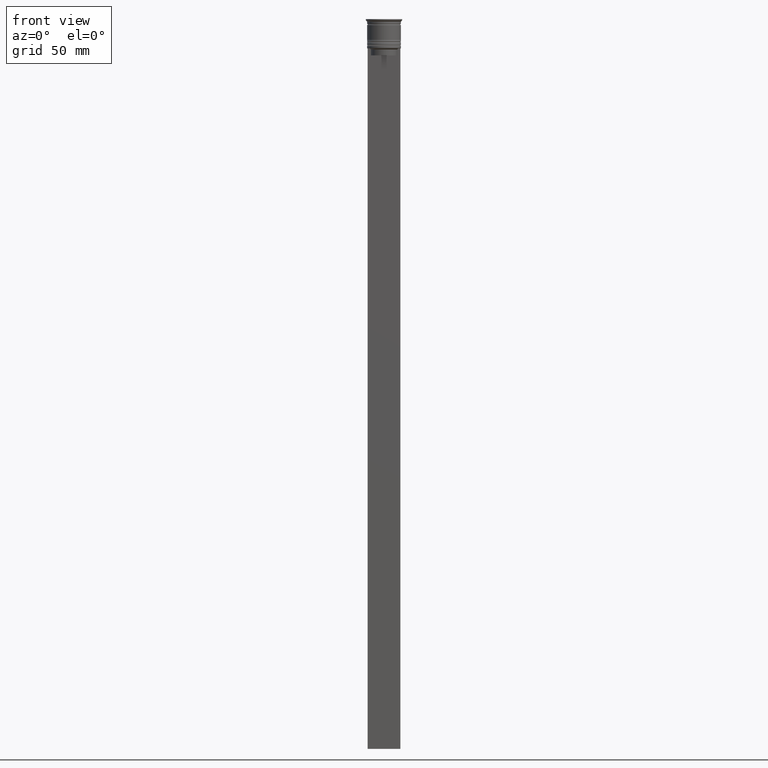
[diagram: clean part render]
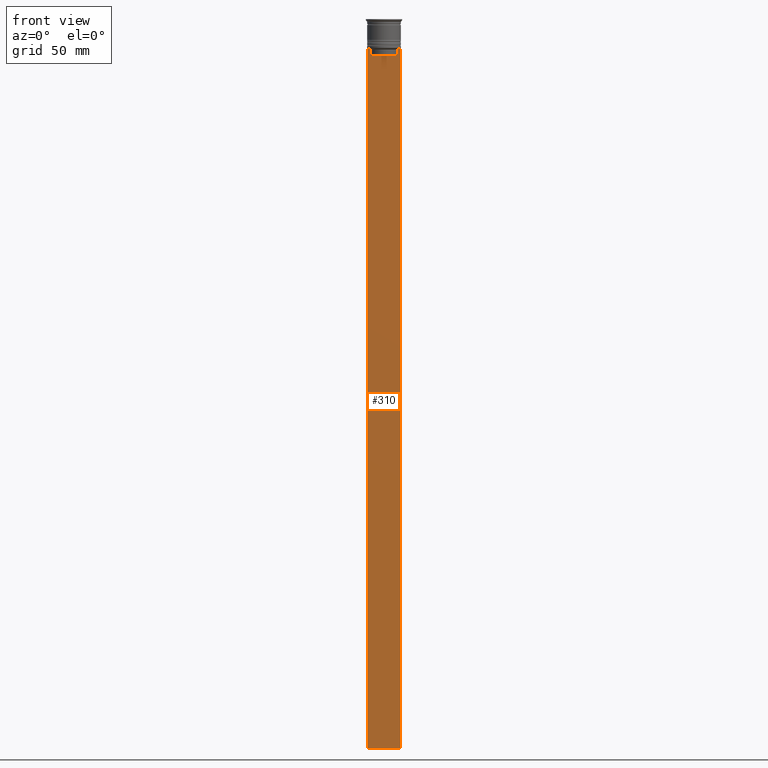
[diagram: same view with one face highlighted and labeled with its STEP entity id]
A machine part, front view. The second image highlights one B-rep face of the part: STEP entity #310.
In plain terms, the highlighted planar face has unit normal (0, -1, -0).
Its self-contained STEP definition (entity closure, byte-faithful):
#9 = VERTEX_POINT ( 'NONE', #495 ) ;
#22 = VERTEX_POINT ( 'NONE', #2275 ) ;
#41 = CARTESIAN_POINT ( 'NONE',  ( 5.627832620112292794, -0.5000000000000022204, -13.00000000000000000 ) ) ;
#66 = VECTOR ( 'NONE', #2034, 1000.000000000000000 ) ;
#116 = VERTEX_POINT ( 'NONE', #884 ) ;
#178 = VERTEX_POINT ( 'NONE', #297 ) ;
#208 = FACE_OUTER_BOUND ( 'NONE', #2069, .T. ) ;
#219 = CARTESIAN_POINT ( 'NONE',  ( 5.795128760752288777, -0.5000000000000022204, -12.83336023406855375 ) ) ;
#262 = CARTESIAN_POINT ( 'NONE',  ( 7.000000000000012434, -0.5000000000000022204, -12.50000000000000000 ) ) ;
#297 = CARTESIAN_POINT ( 'NONE',  ( 5.627832620112292794, -0.5000000000000022204, -15.50000000000000000 ) ) ;
#310 = ADVANCED_FACE ( 'NONE', ( #208 ), #381, .T. ) ;
#324 = CARTESIAN_POINT ( 'NONE',  ( -5.795128834036803234, -0.5000000000000022204, -12.83336016107156574 ) ) ;
#325 = EDGE_CURVE ( 'NONE', #178, #22, #926, .T. ) ;
#346 = VERTEX_POINT ( 'NONE', #1145 ) ;
#351 = CARTESIAN_POINT ( 'NONE',  ( 7.000000000000012434, -0.5000000000000022204, -312.5000000000000000 ) ) ;
#381 = PLANE ( 'NONE',  #925 ) ;
#394 = ORIENTED_EDGE ( 'NONE', *, *, #1666, .F. ) ;
#400 = DIRECTION ( 'NONE',  ( 1.000000000000000000, 0.000000000000000000, 0.000000000000000000 ) ) ;
#443 = EDGE_CURVE ( 'NONE', #9, #2117, #2021, .T. ) ;
#495 = CARTESIAN_POINT ( 'NONE',  ( -6.999999999999987566, -0.5000000000000022204, -12.50000000000000000 ) ) ;
#527 = CARTESIAN_POINT ( 'NONE',  ( -6.999999999999987566, -0.5000000000000022204, -312.5000000000000000 ) ) ;
#598 = CARTESIAN_POINT ( 'NONE',  ( 5.962396079681182570, -0.5000000000000022204, -12.66669137279835766 ) ) ;
#606 = LINE ( 'NONE', #1672, #740 ) ;
#714 = CARTESIAN_POINT ( 'NONE',  ( 7.000000000000012434, -0.5000000000000022204, -312.5000000000000000 ) ) ;
#723 = DIRECTION ( 'NONE',  ( 0.000000000000000000, 0.000000000000000000, -1.000000000000000000 ) ) ;
#724 = VERTEX_POINT ( 'NONE', #351 ) ;
#730 = DIRECTION ( 'NONE',  ( 0.000000000000000000, -1.000000000000000000, -0.000000000000000000 ) ) ;
#740 = VECTOR ( 'NONE', #1096, 1000.000000000000000 ) ;
#787 = LINE ( 'NONE', #1504, #2207 ) ;
#847 = DIRECTION ( 'NONE',  ( -1.000000000000000000, 0.000000000000000000, 0.000000000000000000 ) ) ;
#880 = ORIENTED_EDGE ( 'NONE', *, *, #325, .F. ) ;
#884 = CARTESIAN_POINT ( 'NONE',  ( -5.627832620112292794, -0.5000000000000022204, -15.50000000000000000 ) ) ;
#892 = ORIENTED_EDGE ( 'NONE', *, *, #443, .F. ) ;
#894 = LINE ( 'NONE', #2331, #1909 ) ;
#903 = LINE ( 'NONE', #2013, #1746 ) ;
#925 = AXIS2_PLACEMENT_3D ( 'NONE', #1090, #730, #1449 ) ;
#926 = LINE ( 'NONE', #1656, #66 ) ;
#972 = ORIENTED_EDGE ( 'NONE', *, *, #1098, .F. ) ;
#1005 = CARTESIAN_POINT ( 'NONE',  ( -6.129641098791995368, -0.5000000000000022204, -12.50000000000000000 ) ) ;
#1083 = CARTESIAN_POINT ( 'NONE',  ( -6.129641098791995368, -0.5000000000000022204, -12.50000000000000000 ) ) ;
#1090 = CARTESIAN_POINT ( 'NONE',  ( 7.000000000000012434, -0.5000000000000022204, 1.535668847618198329 ) ) ;
#1093 = ORIENTED_EDGE ( 'NONE', *, *, #1894, .F. ) ;
#1096 = DIRECTION ( 'NONE',  ( 1.000000000000000000, 0.000000000000000000, 0.000000000000000000 ) ) ;
#1098 = EDGE_CURVE ( 'NONE', #2117, #1171, #1325, .T. ) ;
#1130 = DIRECTION ( 'NONE',  ( 1.000000000000000000, 0.000000000000000000, 0.000000000000000000 ) ) ;
#1131 = ORIENTED_EDGE ( 'NONE', *, *, #1867, .T. ) ;
#1145 = CARTESIAN_POINT ( 'NONE',  ( 7.000000000000012434, -0.5000000000000022204, -12.50000000000000000 ) ) ;
#1163 = ORIENTED_EDGE ( 'NONE', *, *, #2315, .F. ) ;
#1171 = VERTEX_POINT ( 'NONE', #1854 ) ;
#1185 = ORIENTED_EDGE ( 'NONE', *, *, #1275, .F. ) ;
#1200 = EDGE_CURVE ( 'NONE', #22, #1842, #1818, .T. ) ;
#1275 = EDGE_CURVE ( 'NONE', #1171, #116, #787, .T. ) ;
#1312 = ORIENTED_EDGE ( 'NONE', *, *, #1200, .F. ) ;
#1325 = B_SPLINE_CURVE_WITH_KNOTS ( 'NONE', 3,
 ( #1005, #1934, #324, #1536 ),
 .UNSPECIFIED., .F., .F.,
 ( 4, 4 ),
 ( 0.01045365750109871796, 0.01116204421161398619 ),
 .UNSPECIFIED. ) ;
#1327 = VECTOR ( 'NONE', #1969, 1000.000000000000000 ) ;
#1334 = CARTESIAN_POINT ( 'NONE',  ( 6.129641098791995368, -0.5000000000000022204, -12.50000000000000000 ) ) ;
#1343 = VECTOR ( 'NONE', #847, 1000.000000000000000 ) ;
#1395 = LINE ( 'NONE', #714, #1343 ) ;
#1417 = LINE ( 'NONE', #1441, #1327 ) ;
#1441 = CARTESIAN_POINT ( 'NONE',  ( 7.000000000000012434, -0.5000000000000022204, 1.535668847618198329 ) ) ;
#1449 = DIRECTION ( 'NONE',  ( 0.000000000000000000, 0.000000000000000000, -1.000000000000000000 ) ) ;
#1486 = VERTEX_POINT ( 'NONE', #527 ) ;
#1492 = CARTESIAN_POINT ( 'NONE',  ( 6.129641098791995368, -0.5000000000000022204, -12.50000000000000000 ) ) ;
#1504 = CARTESIAN_POINT ( 'NONE',  ( -5.627832620112292794, -0.5000000000000022204, 0.000000000000000000 ) ) ;
#1536 = CARTESIAN_POINT ( 'NONE',  ( -5.627832620112292794, -0.5000000000000022204, -13.00000000000000000 ) ) ;
#1656 = CARTESIAN_POINT ( 'NONE',  ( 5.627832620112292794, -0.5000000000000022204, 0.000000000000000000 ) ) ;
#1666 = EDGE_CURVE ( 'NONE', #1842, #346, #606, .T. ) ;
#1672 = CARTESIAN_POINT ( 'NONE',  ( 7.000000000000012434, -0.5000000000000022204, -12.50000000000000000 ) ) ;
#1746 = VECTOR ( 'NONE', #1130, 1000.000000000000000 ) ;
#1818 = B_SPLINE_CURVE_WITH_KNOTS ( 'NONE', 3,
 ( #41, #219, #598, #1492 ),
 .UNSPECIFIED., .F., .F.,
 ( 4, 4 ),
 ( 0.02651134470867370918, 0.02721991123504334531 ),
 .UNSPECIFIED. ) ;
#1842 = VERTEX_POINT ( 'NONE', #1334 ) ;
#1854 = CARTESIAN_POINT ( 'NONE',  ( -5.627832620112292794, -0.5000000000000022204, -13.00000000000000000 ) ) ;
#1867 = EDGE_CURVE ( 'NONE', #9, #1486, #894, .T. ) ;
#1894 = EDGE_CURVE ( 'NONE', #724, #1486, #1395, .T. ) ;
#1909 = VECTOR ( 'NONE', #723, 1000.000000000000000 ) ;
#1934 = CARTESIAN_POINT ( 'NONE',  ( -5.962396146966409738, -0.5000000000000022204, -12.66669130573587054 ) ) ;
#1969 = DIRECTION ( 'NONE',  ( 0.000000000000000000, 0.000000000000000000, -1.000000000000000000 ) ) ;
#1996 = VECTOR ( 'NONE', #400, 1000.000000000000000 ) ;
#2013 = CARTESIAN_POINT ( 'NONE',  ( 0.000000000000000000, -0.5000000000000022204, -15.50000000000000000 ) ) ;
#2021 = LINE ( 'NONE', #262, #1996 ) ;
#2034 = DIRECTION ( 'NONE',  ( -0.000000000000000000, -0.000000000000000000, 1.000000000000000000 ) ) ;
#2069 = EDGE_LOOP ( 'NONE', ( #972, #892, #1131, #1093, #1163, #394, #1312, #880, #2077, #1185 ) ) ;
#2077 = ORIENTED_EDGE ( 'NONE', *, *, #2132, .F. ) ;
#2117 = VERTEX_POINT ( 'NONE', #1083 ) ;
#2132 = EDGE_CURVE ( 'NONE', #116, #178, #903, .T. ) ;
#2207 = VECTOR ( 'NONE', #2225, 1000.000000000000000 ) ;
#2225 = DIRECTION ( 'NONE',  ( 0.000000000000000000, 0.000000000000000000, -1.000000000000000000 ) ) ;
#2275 = CARTESIAN_POINT ( 'NONE',  ( 5.627832620112292794, -0.5000000000000022204, -13.00000000000000000 ) ) ;
#2315 = EDGE_CURVE ( 'NONE', #346, #724, #1417, .T. ) ;
#2331 = CARTESIAN_POINT ( 'NONE',  ( -6.999999999999987566, -0.5000000000000022204, 1.535668847618198329 ) ) ;